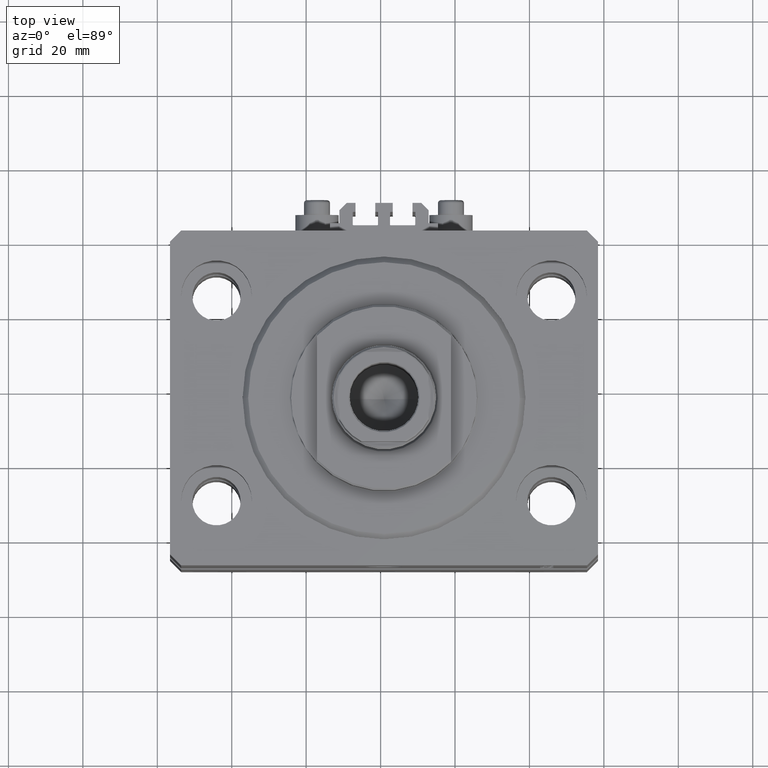
[diagram: clean part render]
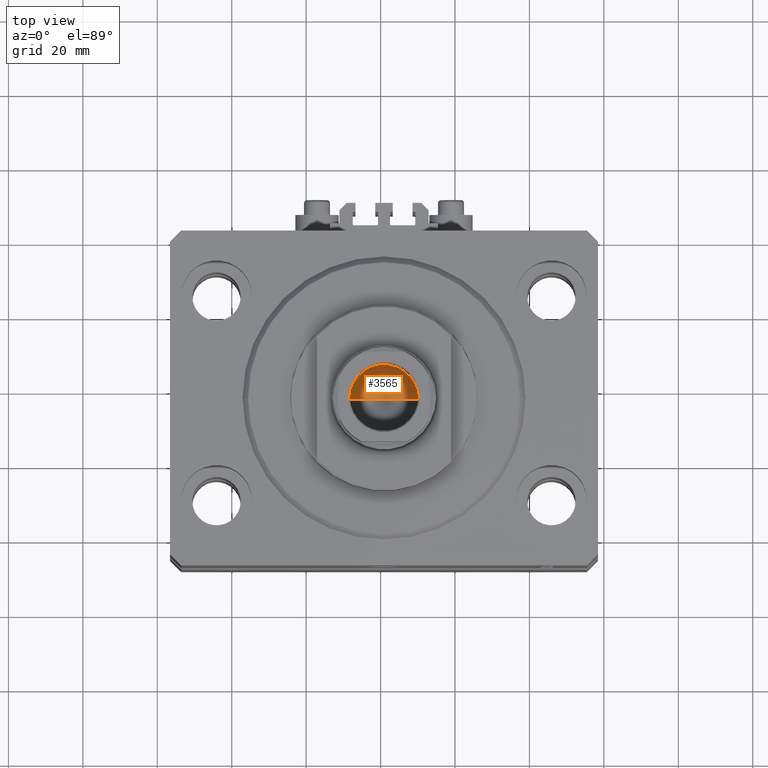
[diagram: same view with one face highlighted and labeled with its STEP entity id]
A machine part, top view. The second image highlights one B-rep face of the part: STEP entity #3565.
In plain terms, the highlighted conical surface has half-angle 59 deg.
Its self-contained STEP definition (entity closure, byte-faithful):
#334 = DIRECTION ( 'NONE',  ( -0.000000000000000000, -0.000000000000000000, 1.000000000000000000 ) ) ;
#811 = DIRECTION ( 'NONE',  ( 1.000000000000000000, 0.000000000000000000, 0.000000000000000000 ) ) ;
#1228 = ORIENTED_EDGE ( 'NONE', *, *, #17300, .F. ) ;
#3565 = ADVANCED_FACE ( 'NONE', ( #8448 ), #30620, .F. ) ;
#3587 = LINE ( 'NONE', #48609, #16538 ) ;
#6082 = VERTEX_POINT ( 'NONE', #39566 ) ;
#8448 = FACE_OUTER_BOUND ( 'NONE', #44993, .T. ) ;
#8803 = CARTESIAN_POINT ( 'NONE',  ( -9.249999999999994671, 1.132798289211300909E-15, 72.00000000000001421 ) ) ;
#11012 = AXIS2_PLACEMENT_3D ( 'NONE', #34030, #334, #811 ) ;
#14791 = CARTESIAN_POINT ( 'NONE',  ( -9.249999999999994671, 1.132798289211300909E-15, 72.00000000000001421 ) ) ;
#14920 = DIRECTION ( 'NONE',  ( 0.8571673007021117785, 0.000000000000000000, 0.5150380749100550437 ) ) ;
#16538 = VECTOR ( 'NONE', #14920, 1000.000000000000000 ) ;
#17300 = EDGE_CURVE ( 'NONE', #6082, #19518, #44540, .T. ) ;
#17780 = EDGE_CURVE ( 'NONE', #45591, #19518, #43674, .T. ) ;
#17981 = ORIENTED_EDGE ( 'NONE', *, *, #31587, .T. ) ;
#18561 = AXIS2_PLACEMENT_3D ( 'NONE', #44367, #44850, #45094 ) ;
#19518 = VERTEX_POINT ( 'NONE', #8803 ) ;
#29942 = ORIENTED_EDGE ( 'NONE', *, *, #17780, .T. ) ;
#30620 = CONICAL_SURFACE ( 'NONE', #11012, 9.249999999999994671, 1.029744258676653423 ) ;
#31587 = EDGE_CURVE ( 'NONE', #6082, #45591, #3587, .T. ) ;
#34030 = CARTESIAN_POINT ( 'NONE',  ( 0.000000000000000000, 0.000000000000000000, 72.00000000000001421 ) ) ;
#36917 = DIRECTION ( 'NONE',  ( -0.8571673007021117785, 1.049727191138617956E-16, 0.5150380749100550437 ) ) ;
#39566 = CARTESIAN_POINT ( 'NONE',  ( -1.046994375366439223E-14, 0.000000000000000000, 66.44203927399506426 ) ) ;
#41269 = VECTOR ( 'NONE', #36917, 1000.000000000000000 ) ;
#43674 = CIRCLE ( 'NONE', #18561, 9.249999999999994671 ) ;
#44367 = CARTESIAN_POINT ( 'NONE',  ( 0.000000000000000000, 0.000000000000000000, 72.00000000000001421 ) ) ;
#44453 = CARTESIAN_POINT ( 'NONE',  ( 9.249999999999994671, 0.000000000000000000, 72.00000000000001421 ) ) ;
#44540 = LINE ( 'NONE', #14791, #41269 ) ;
#44850 = DIRECTION ( 'NONE',  ( -0.000000000000000000, -0.000000000000000000, 1.000000000000000000 ) ) ;
#44993 = EDGE_LOOP ( 'NONE', ( #1228, #17981, #29942 ) ) ;
#45094 = DIRECTION ( 'NONE',  ( 1.000000000000000000, 0.000000000000000000, 0.000000000000000000 ) ) ;
#45591 = VERTEX_POINT ( 'NONE', #44453 ) ;
#48609 = CARTESIAN_POINT ( 'NONE',  ( 9.249999999999994671, 0.000000000000000000, 72.00000000000001421 ) ) ;